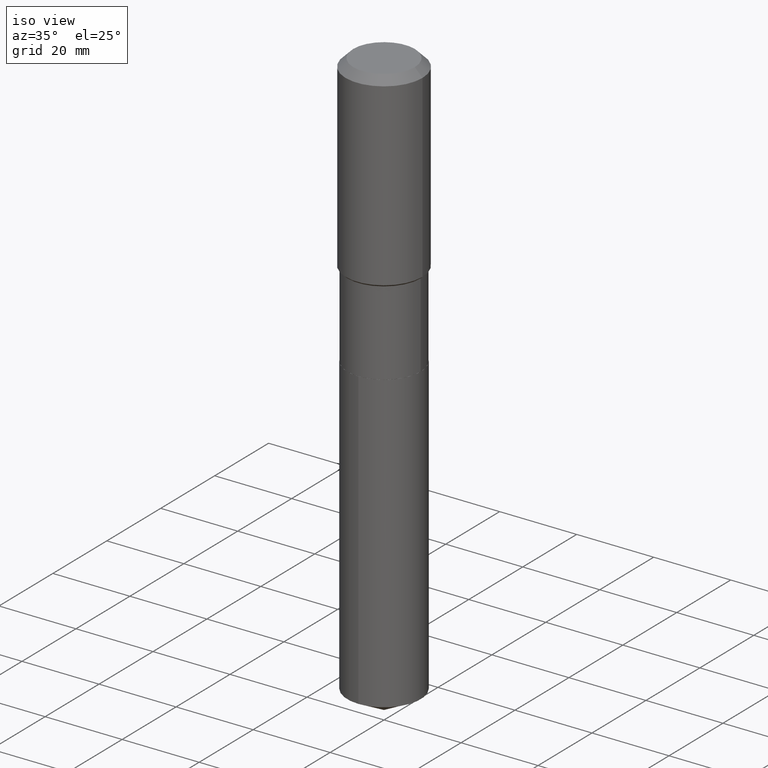
[diagram: clean part render]
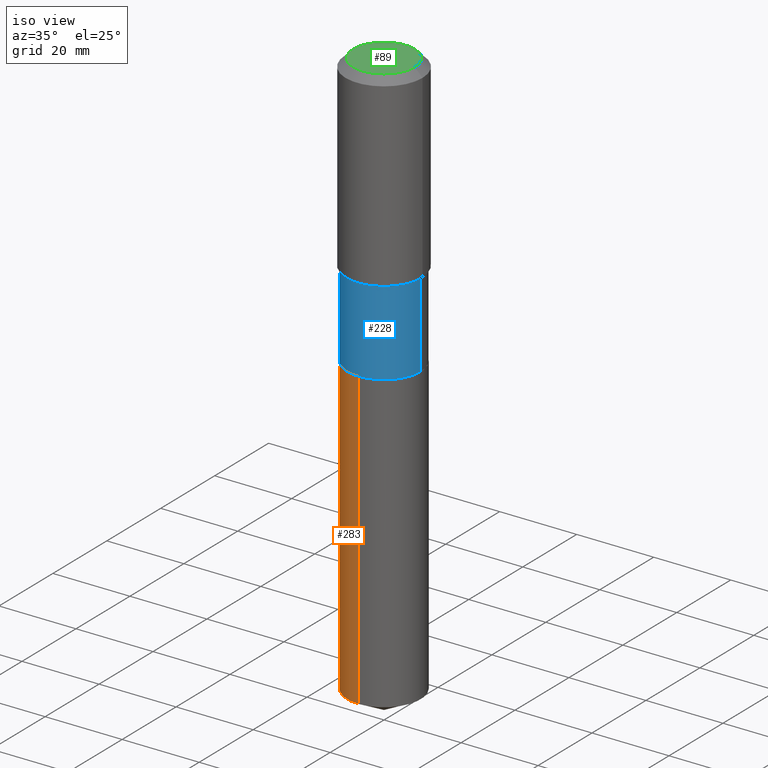
[diagram: same view with three faces highlighted in distinct colors, each labeled with its STEP entity id]
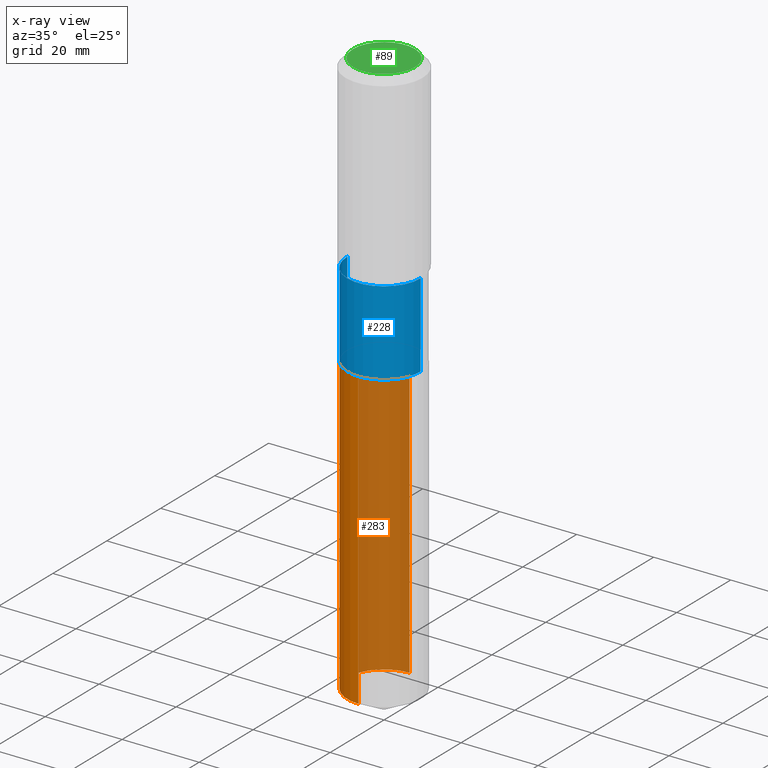
[diagram: x-ray of the same camera — body ghosted, the three highlighted faces saturated]
A machine part, iso view with three faces highlighted in distinct colors.
The next image is the same camera in x-ray (body ghosted, the three faces saturated) — at least one of them is partly hidden behind the body in this view.
Their STEP definitions:

[orange] entity #283 — the highlighted cylindrical surface (partial cylindrical patch) has radius 9.525 mm, axis along (-0, 0, 1).
#25 = AXIS2_PLACEMENT_3D ( 'NONE', #240, #321, #463 ) ;
#34 = CIRCLE ( 'NONE', #25, 0.3750000000000000555 ) ;
#43 = LINE ( 'NONE', #198, #277 ) ;
#44 = DIRECTION ( 'NONE',  ( -2.445835292823377995E-29, 3.490956509118059886E-15, 1.000000000000000000 ) ) ;
#47 = LINE ( 'NONE', #456, #237 ) ;
#49 = EDGE_CURVE ( 'NONE', #474, #155, #47, .T. ) ;
#55 = ORIENTED_EDGE ( 'NONE', *, *, #178, .T. ) ;
#79 = ORIENTED_EDGE ( 'NONE', *, *, #49, .F. ) ;
#93 = DIRECTION ( 'NONE',  ( -6.982962677686265922E-15, -1.000000000000000000, 2.913971193241880372E-15 ) ) ;
#114 = CIRCLE ( 'NONE', #381, 0.3750000000000000555 ) ;
#147 = EDGE_CURVE ( 'NONE', #474, #242, #114, .T. ) ;
#149 = CARTESIAN_POINT ( 'NONE',  ( 2.664535259100518086E-15, 0.3749999999999796829, -5.824608963126946648 ) ) ;
#153 = EDGE_CURVE ( 'NONE', #155, #202, #34, .T. ) ;
#155 = VERTEX_POINT ( 'NONE', #327 ) ;
#178 = EDGE_CURVE ( 'NONE', #242, #202, #43, .T. ) ;
#198 = CARTESIAN_POINT ( 'NONE',  ( -2.618611004132281780E-15, -0.3750000000000097700, -2.797999999999999154 ) ) ;
#202 = VERTEX_POINT ( 'NONE', #326 ) ;
#203 = CYLINDRICAL_SURFACE ( 'NONE', #333, 0.3750000000000000555 ) ;
#216 = DIRECTION ( 'NONE',  ( -2.445835292823377715E-29, 3.490956509118059886E-15, 1.000000000000000000 ) ) ;
#237 = VECTOR ( 'NONE', #416, 39.37007874015748143 ) ;
#240 = CARTESIAN_POINT ( 'NONE',  ( 6.842421719706012162E-29, -9.769164786083122090E-15, -2.798000000000000043 ) ) ;
#242 = VERTEX_POINT ( 'NONE', #282 ) ;
#253 = ORIENTED_EDGE ( 'NONE', *, *, #153, .F. ) ;
#274 = FACE_OUTER_BOUND ( 'NONE', #303, .T. ) ;
#277 = VECTOR ( 'NONE', #216, 39.37007874015748143 ) ;
#282 = CARTESIAN_POINT ( 'NONE',  ( -2.618611004132207233E-15, -0.3750000000000203726, -5.824608963126944872 ) ) ;
#283 = ADVANCED_FACE ( 'NONE', ( #274 ), #203, .T. ) ;
#299 = ORIENTED_EDGE ( 'NONE', *, *, #147, .T. ) ;
#303 = EDGE_LOOP ( 'NONE', ( #79, #299, #55, #253 ) ) ;
#315 = CARTESIAN_POINT ( 'NONE',  ( 1.424500873929746689E-28, -2.033492504646619205E-14, -5.824608963126945760 ) ) ;
#321 = DIRECTION ( 'NONE',  ( -2.445835292823377995E-29, 3.490956509118059886E-15, 1.000000000000000000 ) ) ;
#324 = CARTESIAN_POINT ( 'NONE',  ( 6.842421719706012162E-29, -9.769164786083122090E-15, -2.798000000000000043 ) ) ;
#326 = CARTESIAN_POINT ( 'NONE',  ( -2.618611004132281780E-15, -0.3750000000000097700, -2.797999999999999154 ) ) ;
#327 = CARTESIAN_POINT ( 'NONE',  ( 2.664535259100518875E-15, 0.3749999999999902855, -2.798000000000000931 ) ) ;
#333 = AXIS2_PLACEMENT_3D ( 'NONE', #324, #44, #466 ) ;
#381 = AXIS2_PLACEMENT_3D ( 'NONE', #315, #423, #93 ) ;
#416 = DIRECTION ( 'NONE',  ( -2.445835292823377715E-29, 3.490956509118059886E-15, 1.000000000000000000 ) ) ;
#423 = DIRECTION ( 'NONE',  ( -2.445835292823377995E-29, 3.490956509118059886E-15, 1.000000000000000000 ) ) ;
#456 = CARTESIAN_POINT ( 'NONE',  ( 2.664535259100443933E-15, 0.3749999999999902855, -2.798000000000000931 ) ) ;
#463 = DIRECTION ( 'NONE',  ( -6.982962677686265922E-15, -1.000000000000000000, 2.913971193241880372E-15 ) ) ;
#466 = DIRECTION ( 'NONE',  ( -6.982962677686265922E-15, -1.000000000000000000, 2.913971193241880372E-15 ) ) ;
#474 = VERTEX_POINT ( 'NONE', #149 ) ;

[blue] entity #228 — the highlighted cylindrical surface (partial cylindrical patch) has radius 9.525 mm, axis along (-0, 0, 1).
#1 = CARTESIAN_POINT ( 'NONE',  ( -0.3749999999999999445, -5.598055329271928860E-15, -1.935500000000000220 ) ) ;
#5 = CARTESIAN_POINT ( 'NONE',  ( 6.841198985302919360E-29, -9.767419045413699798E-15, -2.797499999999999876 ) ) ;
#35 = AXIS2_PLACEMENT_3D ( 'NONE', #142, #350, #130 ) ;
#48 = VERTEX_POINT ( 'NONE', #375 ) ;
#59 = VERTEX_POINT ( 'NONE', #413 ) ;
#62 = LINE ( 'NONE', #291, #374 ) ;
#106 = VERTEX_POINT ( 'NONE', #1 ) ;
#107 = VECTOR ( 'NONE', #420, 39.37007874015748143 ) ;
#127 = CIRCLE ( 'NONE', #398, 0.3750000000000000555 ) ;
#130 = DIRECTION ( 'NONE',  ( 1.000000000000000000, -6.982962677686266711E-15, 4.876176775795935793E-29 ) ) ;
#131 = DIRECTION ( 'NONE',  ( 1.000000000000000000, -6.982962677686263555E-15, 0.000000000000000000 ) ) ;
#134 = CARTESIAN_POINT ( 'NONE',  ( -0.3749999999999999445, 2.664535259100375303E-15, -1.844600658845589318E-29 ) ) ;
#142 = CARTESIAN_POINT ( 'NONE',  ( 0.000000000000000000, 0.000000000000000000, 0.000000000000000000 ) ) ;
#143 = CARTESIAN_POINT ( 'NONE',  ( 0.3749999999999999445, -9.376373135463257755E-15, -1.935500000000000220 ) ) ;
#152 = ORIENTED_EDGE ( 'NONE', *, *, #349, .F. ) ;
#163 = DIRECTION ( 'NONE',  ( 1.000000000000000000, -6.982962677686266711E-15, 0.000000000000000000 ) ) ;
#174 = AXIS2_PLACEMENT_3D ( 'NONE', #353, #280, #131 ) ;
#228 = ADVANCED_FACE ( 'NONE', ( #249 ), #395, .T. ) ;
#249 = FACE_OUTER_BOUND ( 'NONE', #400, .T. ) ;
#270 = DIRECTION ( 'NONE',  ( -2.445468806185136597E-29, 3.491481338843145583E-15, 1.000000000000000000 ) ) ;
#280 = DIRECTION ( 'NONE',  ( -2.445468806185136597E-29, 3.491481338843145583E-15, 1.000000000000000000 ) ) ;
#281 = LINE ( 'NONE', #134, #107 ) ;
#291 = CARTESIAN_POINT ( 'NONE',  ( 0.3749999999999999445, -2.618611004132349622E-15, 1.828566290923475642E-29 ) ) ;
#314 = EDGE_CURVE ( 'NONE', #106, #477, #383, .T. ) ;
#342 = ORIENTED_EDGE ( 'NONE', *, *, #401, .T. ) ;
#349 = EDGE_CURVE ( 'NONE', #59, #106, #281, .T. ) ;
#350 = DIRECTION ( 'NONE',  ( -2.445468806185136597E-29, 3.491481338843145583E-15, 1.000000000000000000 ) ) ;
#353 = CARTESIAN_POINT ( 'NONE',  ( 4.733204874371332632E-29, -6.757762131330909316E-15, -1.935500000000000220 ) ) ;
#363 = EDGE_CURVE ( 'NONE', #48, #477, #62, .T. ) ;
#374 = VECTOR ( 'NONE', #427, 39.37007874015748143 ) ;
#375 = CARTESIAN_POINT ( 'NONE',  ( 0.3750000000000000555, -1.238603004954604981E-14, -2.797499999999999876 ) ) ;
#383 = CIRCLE ( 'NONE', #174, 0.3749999999999999445 ) ;
#395 = CYLINDRICAL_SURFACE ( 'NONE', #35, 0.3749999999999999445 ) ;
#398 = AXIS2_PLACEMENT_3D ( 'NONE', #5, #270, #163 ) ;
#400 = EDGE_LOOP ( 'NONE', ( #152, #342, #438, #434 ) ) ;
#401 = EDGE_CURVE ( 'NONE', #59, #48, #127, .T. ) ;
#413 = CARTESIAN_POINT ( 'NONE',  ( -0.3750000000000000555, -5.598055329271928071E-15, -2.797499999999999876 ) ) ;
#420 = DIRECTION ( 'NONE',  ( -2.445468806185136877E-29, 3.491481338843145188E-15, 1.000000000000000000 ) ) ;
#427 = DIRECTION ( 'NONE',  ( -2.445468806185136877E-29, 3.491481338843145188E-15, 1.000000000000000000 ) ) ;
#434 = ORIENTED_EDGE ( 'NONE', *, *, #314, .F. ) ;
#438 = ORIENTED_EDGE ( 'NONE', *, *, #363, .T. ) ;
#477 = VERTEX_POINT ( 'NONE', #143 ) ;

[green] entity #89 — the highlighted planar face has unit normal (0, -0, -1).
#39 = DIRECTION ( 'NONE',  ( 2.438088387897960049E-29, -3.491481338843145188E-15, -1.000000000000000000 ) ) ;
#84 = CARTESIAN_POINT ( 'NONE',  ( -4.713871149261283817E-47, 6.730158695841841775E-33, 1.927594061857935365E-18 ) ) ;
#89 = ADVANCED_FACE ( 'NONE', ( #120 ), #269, .F. ) ;
#105 = VERTEX_POINT ( 'NONE', #488 ) ;
#113 = CARTESIAN_POINT ( 'NONE',  ( -9.427742298522567634E-47, 1.346031739168368355E-32, 3.855188123715870730E-18 ) ) ;
#120 = FACE_OUTER_BOUND ( 'NONE', #419, .T. ) ;
#145 = VERTEX_POINT ( 'NONE', #201 ) ;
#146 = CIRCLE ( 'NONE', #208, 0.3149600000000000177 ) ;
#154 = DIRECTION ( 'NONE',  ( 1.000000000000000000, -6.982962677686265922E-15, 4.876223630392693006E-29 ) ) ;
#171 = DIRECTION ( 'NONE',  ( 1.000000000000000000, -6.982962677686265922E-15, 4.876223630392693006E-29 ) ) ;
#193 = EDGE_CURVE ( 'NONE', #145, #105, #197, .T. ) ;
#197 = CIRCLE ( 'NONE', #461, 0.3149600000000000177 ) ;
#201 = CARTESIAN_POINT ( 'NONE',  ( 0.3149600000000000177, -2.568339875860642378E-15, 3.855188123732540039E-18 ) ) ;
#208 = AXIS2_PLACEMENT_3D ( 'NONE', #486, #298, #154 ) ;
#269 = PLANE ( 'NONE',  #392 ) ;
#298 = DIRECTION ( 'NONE',  ( -2.445468806185136597E-29, 3.491481338843145583E-15, 1.000000000000000000 ) ) ;
#354 = DIRECTION ( 'NONE',  ( -2.445468806185136597E-29, 3.491481338843145583E-15, 1.000000000000000000 ) ) ;
#362 = ORIENTED_EDGE ( 'NONE', *, *, #193, .T. ) ;
#392 = AXIS2_PLACEMENT_3D ( 'NONE', #84, #39, #448 ) ;
#410 = ORIENTED_EDGE ( 'NONE', *, *, #432, .T. ) ;
#419 = EDGE_LOOP ( 'NONE', ( #410, #362 ) ) ;
#432 = EDGE_CURVE ( 'NONE', #105, #145, #146, .T. ) ;
#448 = DIRECTION ( 'NONE',  ( -1.000000000000000000, 6.982962677686265922E-15, -4.876176775795935793E-29 ) ) ;
#461 = AXIS2_PLACEMENT_3D ( 'NONE', #113, #354, #171 ) ;
#486 = CARTESIAN_POINT ( 'NONE',  ( -9.427742298522567634E-47, 1.346031739168368355E-32, 3.855188123715870730E-18 ) ) ;
#488 = CARTESIAN_POINT ( 'NONE',  ( -0.3149600000000000177, 2.336813545274319235E-15, 3.855188123700009542E-18 ) ) ;